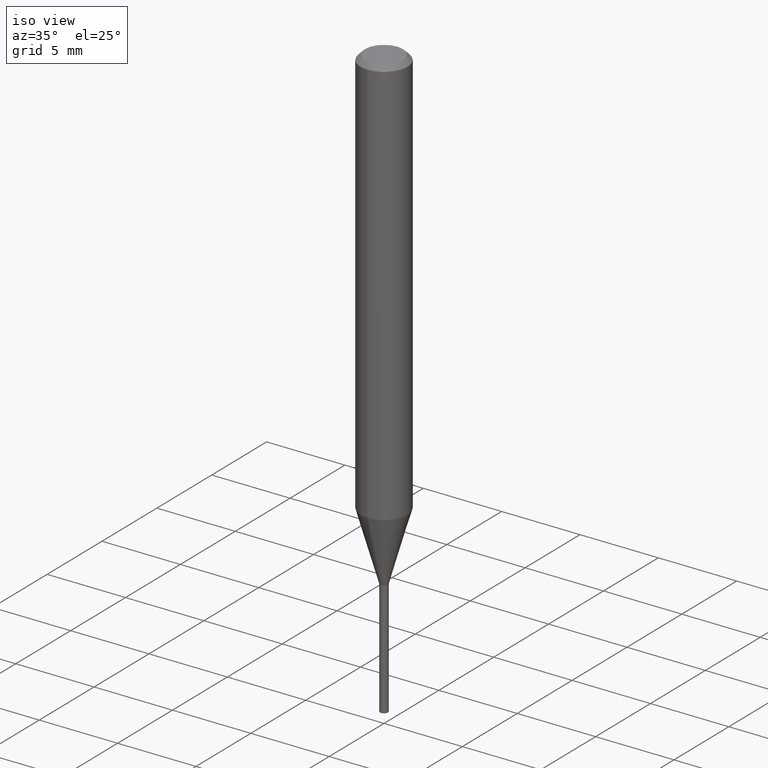
[diagram: clean part render]
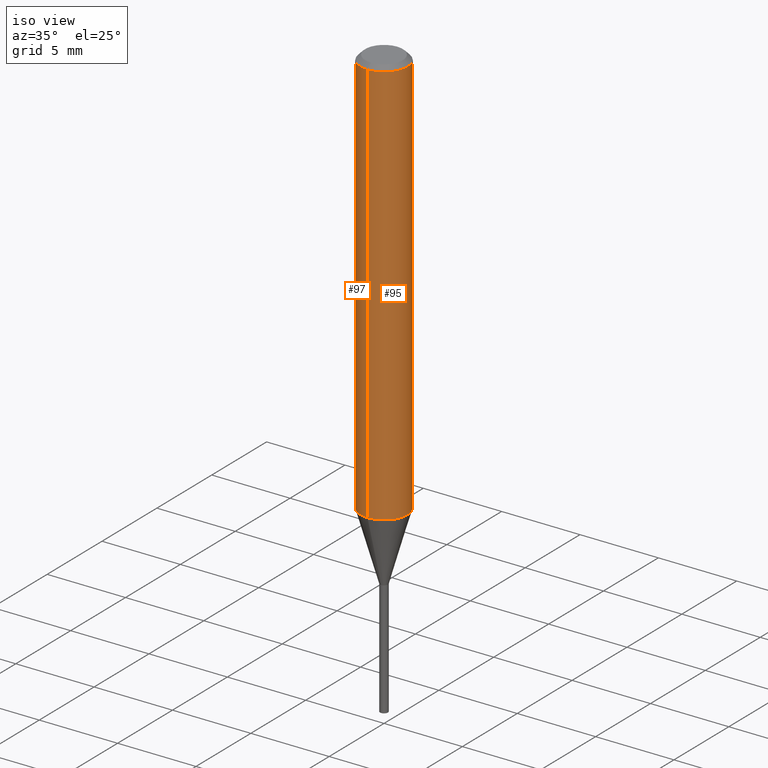
[diagram: same view with one multi-face feature highlighted, each face labeled with its STEP entity id]
A machine part, iso view. The highlighted faces form ONE feature: a constant-radius fillet chain: 2 tangent blend faces with common blend radius 1.5 mm. The faces share edges in the B-rep.
Their STEP definitions:
[1] entity #97 (Cylinder):
#97=ADVANCED_FACE('',(#235),#236,.T.);
#127=VERTEX_POINT('',#270);
#129=EDGE_CURVE('',#167,#127,#272,.T.);
#167=VERTEX_POINT('',#313);
#179=VERTEX_POINT('',#326);
#183=EDGE_CURVE('',#179,#127,#330,.T.);
#185=VERTEX_POINT('',#332);
#203=EDGE_CURVE('',#185,#167,#353,.T.);
#205=EDGE_CURVE('',#179,#185,#355,.T.);
#235=FACE_OUTER_BOUND('',#377,.T.);
#236=CYLINDRICAL_SURFACE('',#378,1.5);
#270=CARTESIAN_POINT('',(0.0,1.5,-26.141));
#272=LINE('',#425,#426);
#313=CARTESIAN_POINT('',(0.0,1.5,-0.300000000000001));
#326=CARTESIAN_POINT('',(1.83690953073357E-016,-1.5,-26.141));
#330=CIRCLE('',#503,1.5);
#332=CARTESIAN_POINT('',(1.83690953073357E-016,-1.5,-0.300000000000001));
#353=CIRCLE('',#529,1.5);
#355=LINE('',#532,#533);
#377=EDGE_LOOP('',(#560,#561,#562,#563));
#378=AXIS2_PLACEMENT_3D('',#564,#565,#566);
#425=CARTESIAN_POINT('',(-1.83690953073357E-016,1.5,-13.2205));
#426=VECTOR('',#610,1.0);
#503=AXIS2_PLACEMENT_3D('',#675,#676,#677);
#529=AXIS2_PLACEMENT_3D('',#699,#700,#701);
#532=CARTESIAN_POINT('',(1.83690953073357E-016,-1.5,-13.2205));
#533=VECTOR('',#702,1.0);
#560=ORIENTED_EDGE('',*,*,#129,.T.);
#561=ORIENTED_EDGE('',*,*,#183,.F.);
#562=ORIENTED_EDGE('',*,*,#205,.T.);
#563=ORIENTED_EDGE('',*,*,#203,.T.);
#564=CARTESIAN_POINT('',(0.0,0.0,-13.2205));
#565=DIRECTION('',(-0.0,-0.0,1.0));
#566=DIRECTION('',(0.0,1.0,0.0));
#610=DIRECTION('',(0.0,0.0,-1.0));
#675=CARTESIAN_POINT('',(0.0,0.0,-26.141));
#676=DIRECTION('',(0.0,0.0,-1.0));
#677=DIRECTION('',(0.0,1.0,0.0));
#699=CARTESIAN_POINT('',(0.0,0.0,-0.300000000000001));
#700=DIRECTION('',(0.0,0.0,-1.0));
#701=DIRECTION('',(0.0,1.0,0.0));
#702=DIRECTION('',(-0.0,-0.0,1.0));
[2] entity #95 (Cylinder):
#95=ADVANCED_FACE('',(#232),#233,.T.);
#105=EDGE_CURVE('',#167,#185,#245,.T.);
#115=EDGE_CURVE('',#127,#179,#256,.T.);
#127=VERTEX_POINT('',#270);
#129=EDGE_CURVE('',#167,#127,#272,.T.);
#167=VERTEX_POINT('',#313);
#179=VERTEX_POINT('',#326);
#185=VERTEX_POINT('',#332);
#205=EDGE_CURVE('',#179,#185,#355,.T.);
#232=FACE_OUTER_BOUND('',#374,.T.);
#233=CYLINDRICAL_SURFACE('',#375,1.5);
#245=CIRCLE('',#390,1.5);
#256=CIRCLE('',#407,1.5);
#270=CARTESIAN_POINT('',(0.0,1.5,-26.141));
#272=LINE('',#425,#426);
#313=CARTESIAN_POINT('',(0.0,1.5,-0.300000000000001));
#326=CARTESIAN_POINT('',(1.83690953073357E-016,-1.5,-26.141));
#332=CARTESIAN_POINT('',(1.83690953073357E-016,-1.5,-0.300000000000001));
#355=LINE('',#532,#533);
#374=EDGE_LOOP('',(#552,#553,#554,#555));
#375=AXIS2_PLACEMENT_3D('',#556,#557,#558);
#390=AXIS2_PLACEMENT_3D('',#576,#577,#578);
#407=AXIS2_PLACEMENT_3D('',#592,#593,#594);
#425=CARTESIAN_POINT('',(-1.83690953073357E-016,1.5,-13.2205));
#426=VECTOR('',#610,1.0);
#532=CARTESIAN_POINT('',(1.83690953073357E-016,-1.5,-13.2205));
#533=VECTOR('',#702,1.0);
#552=ORIENTED_EDGE('',*,*,#129,.F.);
#553=ORIENTED_EDGE('',*,*,#105,.T.);
#554=ORIENTED_EDGE('',*,*,#205,.F.);
#555=ORIENTED_EDGE('',*,*,#115,.F.);
#556=CARTESIAN_POINT('',(0.0,0.0,-13.2205));
#557=DIRECTION('',(-0.0,-0.0,1.0));
#558=DIRECTION('',(0.0,1.0,0.0));
#576=CARTESIAN_POINT('',(0.0,0.0,-0.300000000000001));
#577=DIRECTION('',(0.0,0.0,-1.0));
#578=DIRECTION('',(0.0,1.0,0.0));
#592=CARTESIAN_POINT('',(0.0,0.0,-26.141));
#593=DIRECTION('',(0.0,0.0,-1.0));
#594=DIRECTION('',(0.0,1.0,0.0));
#610=DIRECTION('',(0.0,0.0,-1.0));
#702=DIRECTION('',(-0.0,-0.0,1.0));